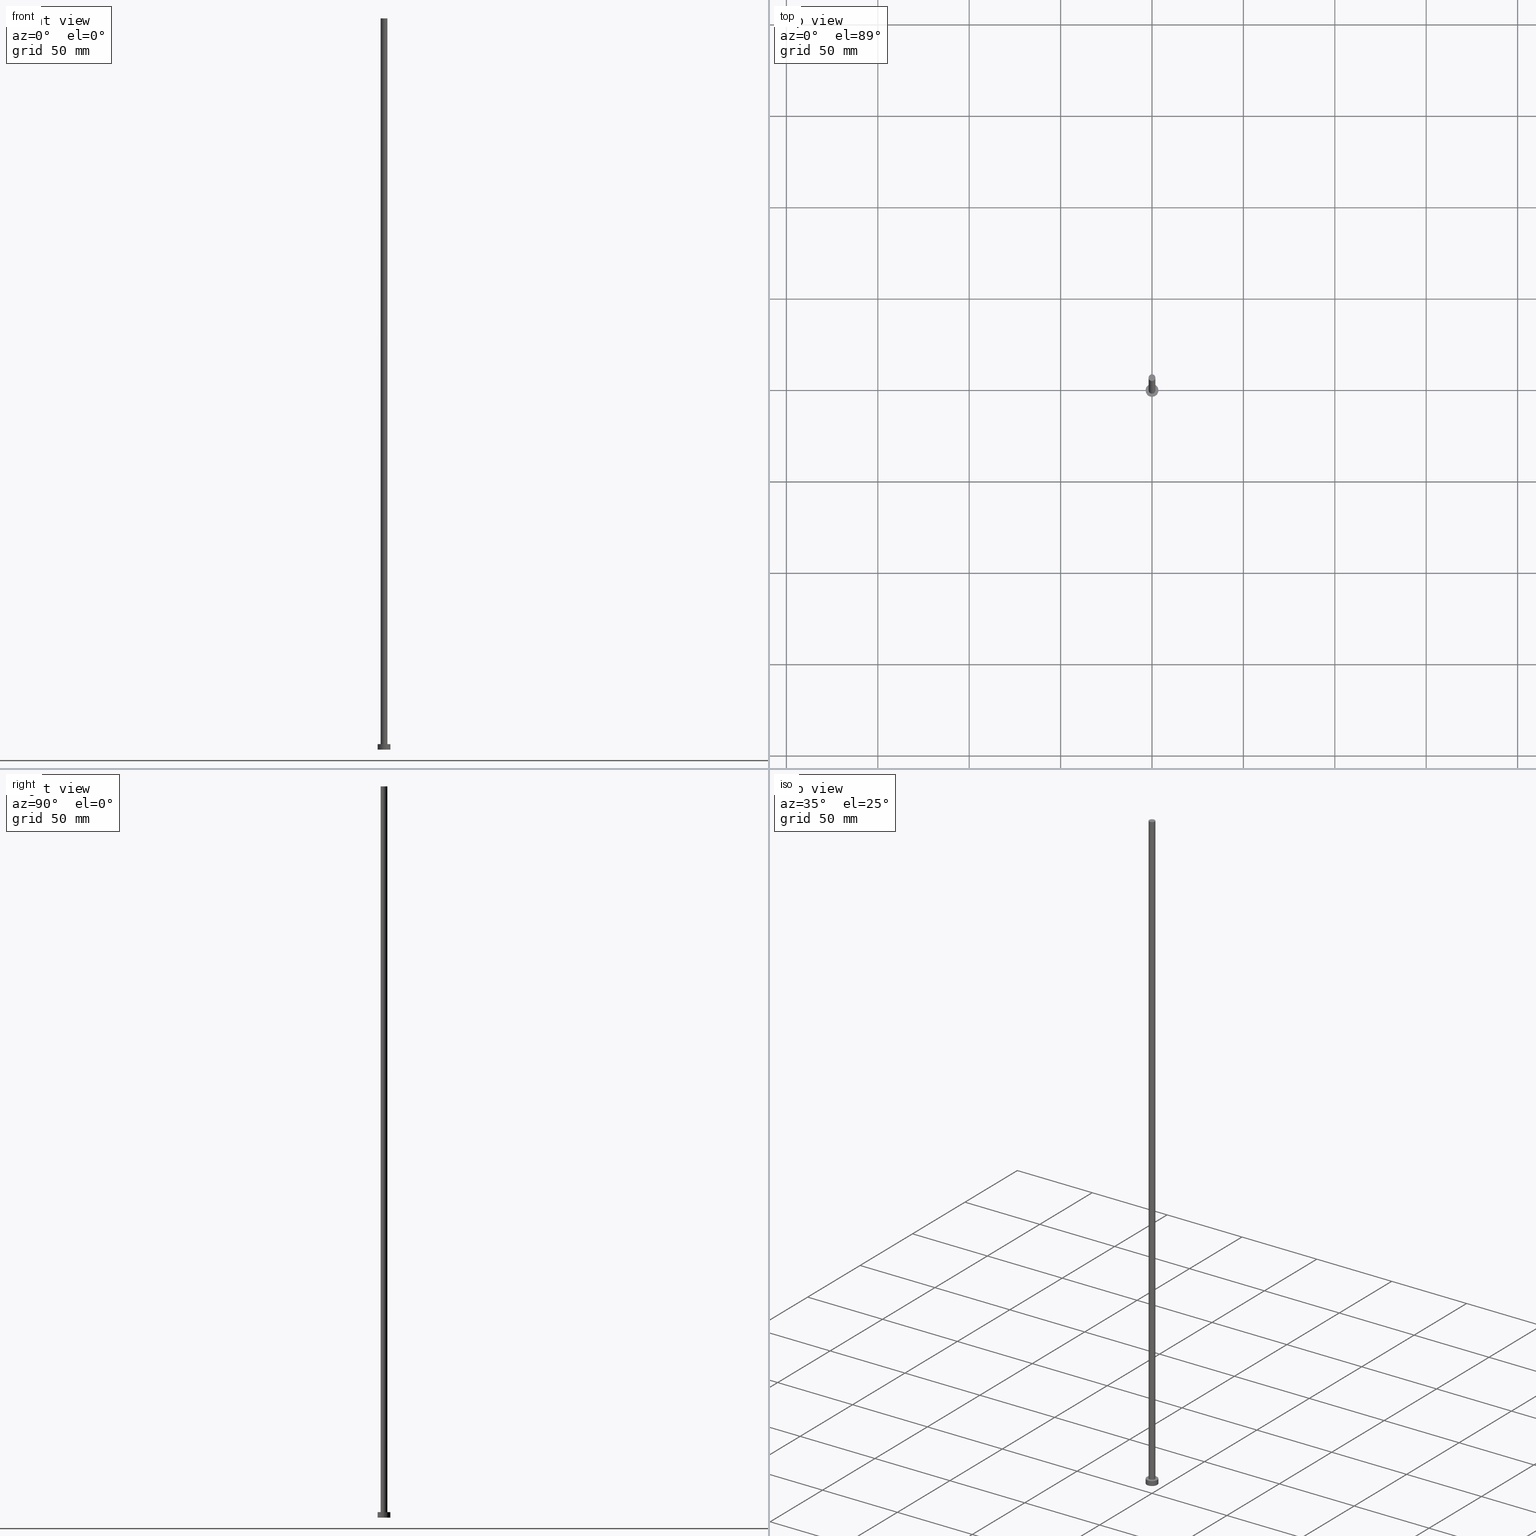
[diagram: canonical four-view strip — front | top / right | iso, engineering-drawing reading convention]
A machine part, canonical four-view strip (front | top / right | iso — engineering-drawing reading convention). The complete STEP part file that produces these views, byte-faithful:
ISO-10303-21;
HEADER;
FILE_DESCRIPTION (( 'STEP AP203' ),
    '1' );
FILE_NAME ('3c80.STEP',
    '2026-02-11T15:50:31',
    ( '' ),
    ( '' ),
    'SwSTEP 2.0',
    'SolidWorks 2019',
    '' );
FILE_SCHEMA (( 'CONFIG_CONTROL_DESIGN' ));
ENDSEC;

DATA;
#1 = ORIENTED_EDGE ( 'NONE', *, *, #176, .F. ) ;
#2 = APPROVAL ( #229, 'NEUR�EN�' ) ;
#3 = EDGE_CURVE ( 'NONE', #21, #142, #39, .T. ) ;
#4 = AXIS2_PLACEMENT_3D ( 'NONE', #46, #187, #225 ) ;
#5 = ORIENTED_EDGE ( 'NONE', *, *, #135, .T. ) ;
#6 = ORIENTED_EDGE ( 'NONE', *, *, #133, .T. ) ;
#7 = DIRECTION ( 'NONE',  ( 1.000000000000000000, 0.000000000000000000, 0.000000000000000000 ) ) ;
#8 = CYLINDRICAL_SURFACE ( 'NONE', #184, 3.500000000000000444 ) ;
#9 = DIRECTION ( 'NONE',  ( 1.000000000000000000, 0.000000000000000000, 0.000000000000000000 ) ) ;
#10 = EDGE_LOOP ( 'NONE', ( #141, #61, #125, #202 ) ) ;
#11 = DIRECTION ( 'NONE',  ( -1.000000000000000000, 0.000000000000000000, 0.000000000000000000 ) ) ;
#12 = DIRECTION ( 'NONE',  ( 1.000000000000000000, 0.000000000000000000, 0.000000000000000000 ) ) ;
#13 = CARTESIAN_POINT ( 'NONE',  ( 1.850000000000000089, 2.265596578422603100E-16, 400.0000000000000000 ) ) ;
#14 = APPROVAL_DATE_TIME ( #171, #78 ) ;
#15 = EDGE_CURVE ( 'NONE', #142, #21, #222, .T. ) ;
#16 = PERSON_AND_ORGANIZATION_ROLE ( 'classification_officer' ) ;
#17 = CIRCLE ( 'NONE', #242, 1.850000000000000089 ) ;
#18 = EDGE_LOOP ( 'NONE', ( #100, #102 ) ) ;
#19 = ADVANCED_FACE ( 'NONE', ( #58, #238 ), #101, .T. ) ;
#20 = CARTESIAN_POINT ( 'NONE',  ( 0.000000000000000000, 0.000000000000000000, 400.0000000000000000 ) ) ;
#21 = VERTEX_POINT ( 'NONE', #137 ) ;
#22 = ORIENTED_EDGE ( 'NONE', *, *, #15, .F. ) ;
#23 = CARTESIAN_POINT ( 'NONE',  ( -1.850000000000000089, 0.000000000000000000, 400.0000000000000000 ) ) ;
#24 = FACE_OUTER_BOUND ( 'NONE', #10, .T. ) ;
#25 = APPROVAL_PERSON_ORGANIZATION ( #201, #157, #34 ) ;
#26 = PRODUCT ( '3c80', '3c80', '', ( #86 ) ) ;
#27 = DIRECTION ( 'NONE',  ( 1.000000000000000000, 0.000000000000000000, -0.000000000000000000 ) ) ;
#28 = DIRECTION ( 'NONE',  ( 0.000000000000000000, 0.000000000000000000, 1.000000000000000000 ) ) ;
#29 = FACE_OUTER_BOUND ( 'NONE', #18, .T. ) ;
#30 = AXIS2_PLACEMENT_3D ( 'NONE', #191, #146, #12 ) ;
#31 = CALENDAR_DATE ( 2026, 11, 2 ) ;
#32 = SECURITY_CLASSIFICATION_LEVEL ( 'unclassified' ) ;
#33 = CC_DESIGN_APPROVAL ( #2, ( #75 ) ) ;
#34 = APPROVAL_ROLE ( '' ) ;
#35 = MANIFOLD_SOLID_BREP ( 'P�idat vysunut�m3', #253 ) ;
#36 = AXIS2_PLACEMENT_3D ( 'NONE', #248, #149, #231 ) ;
#37 = PRODUCT_DEFINITION ( 'NEZN�M�', '', #82, #79 ) ;
#38 = CARTESIAN_POINT ( 'NONE',  ( 0.000000000000000000, 0.000000000000000000, 3.000000000000000000 ) ) ;
#39 = CIRCLE ( 'NONE', #217, 1.850000000000000089 ) ;
#40 = APPROVAL_PERSON_ORGANIZATION ( #252, #78, #74 ) ;
#41 = VERTEX_POINT ( 'NONE', #215 ) ;
#42 = ORIENTED_EDGE ( 'NONE', *, *, #185, .F. ) ;
#43 = PERSON_AND_ORGANIZATION ( #97, #109 ) ;
#44 = CARTESIAN_POINT ( 'NONE',  ( 3.500000000000000444, 4.286263797015737088E-16, 3.000000000000000000 ) ) ;
#45 = APPROVAL_PERSON_ORGANIZATION ( #117, #2, #68 ) ;
#46 = CARTESIAN_POINT ( 'NONE',  ( 0.000000000000000000, 0.000000000000000000, 400.0000000000000000 ) ) ;
#47 = EDGE_CURVE ( 'NONE', #41, #240, #107, .T. ) ;
#48 = PLANE ( 'NONE',  #120 ) ;
#49 = DIRECTION ( 'NONE',  ( 1.000000000000000000, 0.000000000000000000, 0.000000000000000000 ) ) ;
#50 = CC_DESIGN_APPROVAL ( #157, ( #37 ) ) ;
#51 = DATE_AND_TIME ( #147, #195 ) ;
#52 = CARTESIAN_POINT ( 'NONE',  ( 1.850000000000000089, 2.265596578422603100E-16, 3.000000000000000000 ) ) ;
#53 = CIRCLE ( 'NONE', #169, 3.500000000000000444 ) ;
#54 = PERSON_AND_ORGANIZATION ( #97, #109 ) ;
#55 = APPROVAL_STATUS ( 'not_yet_approved' ) ;
#56 =( GEOMETRIC_REPRESENTATION_CONTEXT ( 3 ) GLOBAL_UNCERTAINTY_ASSIGNED_CONTEXT ( ( #155 ) ) GLOBAL_UNIT_ASSIGNED_CONTEXT ( ( #241, #103, #84 ) ) REPRESENTATION_CONTEXT ( 'NONE', 'WORKASPACE' ) );
#57 = CARTESIAN_POINT ( 'NONE',  ( 0.000000000000000000, 0.000000000000000000, 3.000000000000000000 ) ) ;
#58 = FACE_BOUND ( 'NONE', #122, .T. ) ;
#59 = CC_DESIGN_PERSON_AND_ORGANIZATION_ASSIGNMENT ( #232, #235, ( #82 ) ) ;
#60 = EDGE_LOOP ( 'NONE', ( #1, #219, #199, #220 ) ) ;
#61 = ORIENTED_EDGE ( 'NONE', *, *, #3, .F. ) ;
#62 = AXIS2_PLACEMENT_3D ( 'NONE', #57, #237, #198 ) ;
#63 = LINE ( 'NONE', #129, #245 ) ;
#64 = CC_DESIGN_PERSON_AND_ORGANIZATION_ASSIGNMENT ( #115, #172, ( #37 ) ) ;
#65 = CYLINDRICAL_SURFACE ( 'NONE', #4, 1.850000000000000089 ) ;
#66 = ADVANCED_FACE ( 'NONE', ( #110 ), #148, .T. ) ;
#67 = LINE ( 'NONE', #93, #143 ) ;
#68 = APPROVAL_ROLE ( '' ) ;
#69 = DIRECTION ( 'NONE',  ( 0.000000000000000000, 0.000000000000000000, 1.000000000000000000 ) ) ;
#70 = CARTESIAN_POINT ( 'NONE',  ( 0.000000000000000000, 0.000000000000000000, 0.000000000000000000 ) ) ;
#71 = SHAPE_DEFINITION_REPRESENTATION ( #188, #154 ) ;
#72 = CALENDAR_DATE ( 2026, 11, 2 ) ;
#73 = CC_DESIGN_PERSON_AND_ORGANIZATION_ASSIGNMENT ( #54, #134, ( #82 ) ) ;
#74 = APPROVAL_ROLE ( '' ) ;
#75 = SECURITY_CLASSIFICATION ( '', '', #32 ) ;
#76 = DIRECTION ( 'NONE',  ( 0.000000000000000000, 0.000000000000000000, 1.000000000000000000 ) ) ;
#77 = DIRECTION ( 'NONE',  ( 1.000000000000000000, 0.000000000000000000, 0.000000000000000000 ) ) ;
#78 = APPROVAL ( #211, 'NEUR�EN�' ) ;
#79 = DESIGN_CONTEXT ( 'detailed design', #150, 'design' ) ;
#80 = AXIS2_PLACEMENT_3D ( 'NONE', #38, #69, #207 ) ;
#81 = ORIENTED_EDGE ( 'NONE', *, *, #47, .T. ) ;
#82 = PRODUCT_DEFINITION_FORMATION_WITH_SPECIFIED_SOURCE ( 'LIBOVOLN�', '', #26, .NOT_KNOWN. ) ;
#83 = EDGE_LOOP ( 'NONE', ( #22, #162, #216, #42 ) ) ;
#84 =( NAMED_UNIT ( * ) SI_UNIT ( $, .STERADIAN. ) SOLID_ANGLE_UNIT ( ) );
#85 = VERTEX_POINT ( 'NONE', #92 ) ;
#86 = MECHANICAL_CONTEXT ( 'NONE', #163, 'mechanical' ) ;
#87 = CARTESIAN_POINT ( 'NONE',  ( 0.000000000000000000, 0.000000000000000000, 3.000000000000000000 ) ) ;
#88 = CC_DESIGN_PERSON_AND_ORGANIZATION_ASSIGNMENT ( #43, #203, ( #26 ) ) ;
#89 = AXIS2_PLACEMENT_3D ( 'NONE', #190, #230, #11 ) ;
#90 = ADVANCED_FACE ( 'NONE', ( #246 ), #48, .T. ) ;
#91 = DIRECTION ( 'NONE',  ( -1.000000000000000000, 0.000000000000000000, 0.000000000000000000 ) ) ;
#92 = CARTESIAN_POINT ( 'NONE',  ( 3.500000000000000444, 4.286263797015737088E-16, 0.000000000000000000 ) ) ;
#93 = CARTESIAN_POINT ( 'NONE',  ( 1.850000000000000089, 2.265596578422603100E-16, 400.0000000000000000 ) ) ;
#94 = FACE_OUTER_BOUND ( 'NONE', #83, .T. ) ;
#95 = APPROVAL_DATE_TIME ( #151, #157 ) ;
#96 = COORDINATED_UNIVERSAL_TIME_OFFSET ( 1, 0, .AHEAD. ) ;
#97 = PERSON ( 'NEUR�EN�', 'NEUR�EN�', 'NEUR�EN�', ('NEUR�EN�'), ('NEUR�EN�'), ('NEUR�EN�') ) ;
#98 = ORIENTED_EDGE ( 'NONE', *, *, #133, .F. ) ;
#99 = AXIS2_PLACEMENT_3D ( 'NONE', #208, #28, #111 ) ;
#100 = ORIENTED_EDGE ( 'NONE', *, *, #251, .F. ) ;
#101 = PLANE ( 'NONE',  #62 ) ;
#102 = ORIENTED_EDGE ( 'NONE', *, *, #135, .F. ) ;
#103 =( NAMED_UNIT ( * ) PLANE_ANGLE_UNIT ( ) SI_UNIT ( $, .RADIAN. ) );
#104 = ORIENTED_EDGE ( 'NONE', *, *, #116, .F. ) ;
#105 = EDGE_CURVE ( 'NONE', #142, #139, #67, .T. ) ;
#106 = DIRECTION ( 'NONE',  ( 0.000000000000000000, 0.000000000000000000, 1.000000000000000000 ) ) ;
#107 = CIRCLE ( 'NONE', #80, 3.500000000000000444 ) ;
#108 = LINE ( 'NONE', #23, #152 ) ;
#109 = ORGANIZATION ( 'NEUR�EN�', 'NEUR�EN�', '' ) ;
#110 = FACE_OUTER_BOUND ( 'NONE', #174, .T. ) ;
#111 = DIRECTION ( 'NONE',  ( 1.000000000000000000, 0.000000000000000000, 0.000000000000000000 ) ) ;
#112 = DIRECTION ( 'NONE',  ( 1.000000000000000000, 0.000000000000000000, -0.000000000000000000 ) ) ;
#113 = DATE_AND_TIME ( #173, #218 ) ;
#114 = COORDINATED_UNIVERSAL_TIME_OFFSET ( 1, 0, .AHEAD. ) ;
#115 = PERSON_AND_ORGANIZATION ( #97, #109 ) ;
#116 = EDGE_CURVE ( 'NONE', #139, #123, #179, .T. ) ;
#117 = PERSON_AND_ORGANIZATION ( #97, #109 ) ;
#118 = VECTOR ( 'NONE', #183, 1000.000000000000000 ) ;
#119 = DIRECTION ( 'NONE',  ( 1.000000000000000000, 0.000000000000000000, 0.000000000000000000 ) ) ;
#120 = AXIS2_PLACEMENT_3D ( 'NONE', #167, #130, #27 ) ;
#121 = AXIS2_PLACEMENT_3D ( 'NONE', #221, #126, #7 ) ;
#122 = EDGE_LOOP ( 'NONE', ( #178, #104 ) ) ;
#123 = VERTEX_POINT ( 'NONE', #247 ) ;
#124 = APPLICATION_PROTOCOL_DEFINITION ( 'international standard', 'config_control_design', 1994, #163 ) ;
#125 = ORIENTED_EDGE ( 'NONE', *, *, #185, .T. ) ;
#126 = DIRECTION ( 'NONE',  ( 0.000000000000000000, 0.000000000000000000, 1.000000000000000000 ) ) ;
#127 = CARTESIAN_POINT ( 'NONE',  ( 0.000000000000000000, 0.000000000000000000, 0.000000000000000000 ) ) ;
#128 = CC_DESIGN_DATE_AND_TIME_ASSIGNMENT ( #213, #194, ( #37 ) ) ;
#129 = CARTESIAN_POINT ( 'NONE',  ( -3.500000000000000444, 0.000000000000000000, 3.000000000000000000 ) ) ;
#130 = DIRECTION ( 'NONE',  ( 0.000000000000000000, 0.000000000000000000, 1.000000000000000000 ) ) ;
#131 = DIRECTION ( 'NONE',  ( -0.000000000000000000, -0.000000000000000000, -1.000000000000000000 ) ) ;
#132 = PLANE ( 'NONE',  #210 ) ;
#133 = EDGE_CURVE ( 'NONE', #240, #41, #214, .T. ) ;
#134 = PERSON_AND_ORGANIZATION_ROLE ( 'design_supplier' ) ;
#135 = EDGE_CURVE ( 'NONE', #85, #200, #175, .T. ) ;
#136 = COORDINATED_UNIVERSAL_TIME_OFFSET ( 1, 0, .AHEAD. ) ;
#137 = CARTESIAN_POINT ( 'NONE',  ( -1.850000000000000089, 0.000000000000000000, 400.0000000000000000 ) ) ;
#138 = PRODUCT_RELATED_PRODUCT_CATEGORY ( 'detail', '', ( #26 ) ) ;
#139 = VERTEX_POINT ( 'NONE', #52 ) ;
#140 = ADVANCED_FACE ( 'NONE', ( #29 ), #132, .F. ) ;
#141 = ORIENTED_EDGE ( 'NONE', *, *, #105, .F. ) ;
#142 = VERTEX_POINT ( 'NONE', #13 ) ;
#143 = VECTOR ( 'NONE', #131, 1000.000000000000000 ) ;
#144 = CARTESIAN_POINT ( 'NONE',  ( 0.000000000000000000, 0.000000000000000000, 3.000000000000000000 ) ) ;
#145 = DIRECTION ( 'NONE',  ( -0.000000000000000000, -0.000000000000000000, -1.000000000000000000 ) ) ;
#146 = DIRECTION ( 'NONE',  ( 0.000000000000000000, 0.000000000000000000, 1.000000000000000000 ) ) ;
#147 = CALENDAR_DATE ( 2026, 11, 2 ) ;
#148 = CYLINDRICAL_SURFACE ( 'NONE', #89, 3.500000000000000444 ) ;
#149 = DIRECTION ( 'NONE',  ( -0.000000000000000000, -0.000000000000000000, -1.000000000000000000 ) ) ;
#150 = APPLICATION_CONTEXT ( 'configuration controlled 3d designs of mechanical parts and assemblies' ) ;
#151 = DATE_AND_TIME ( #72, #160 ) ;
#152 = VECTOR ( 'NONE', #145, 1000.000000000000000 ) ;
#153 = CALENDAR_DATE ( 2026, 11, 2 ) ;
#154 = ADVANCED_BREP_SHAPE_REPRESENTATION ( '3c80', ( #35, #121 ), #56 ) ;
#155 = UNCERTAINTY_MEASURE_WITH_UNIT (LENGTH_MEASURE( 1.000000000000000082E-05 ), #241, 'distance_accuracy_value', 'NONE');
#156 = CARTESIAN_POINT ( 'NONE',  ( 0.000000000000000000, 0.000000000000000000, 400.0000000000000000 ) ) ;
#157 = APPROVAL ( #55, 'NEUR�EN�' ) ;
#158 = DIRECTION ( 'NONE',  ( 0.000000000000000000, 0.000000000000000000, 1.000000000000000000 ) ) ;
#159 = ADVANCED_FACE ( 'NONE', ( #94 ), #170, .T. ) ;
#160 = LOCAL_TIME ( 16, 50, 31.00000000000000000, #250 ) ;
#161 = ORIENTED_EDGE ( 'NONE', *, *, #15, .T. ) ;
#162 = ORIENTED_EDGE ( 'NONE', *, *, #105, .T. ) ;
#163 = APPLICATION_CONTEXT ( 'configuration controlled 3d designs of mechanical parts and assemblies' ) ;
#164 = APPLICATION_PROTOCOL_DEFINITION ( 'international standard', 'config_control_design', 1994, #150 ) ;
#165 = CARTESIAN_POINT ( 'NONE',  ( -3.500000000000000444, 0.000000000000000000, 0.000000000000000000 ) ) ;
#166 = DIRECTION ( 'NONE',  ( 1.000000000000000000, 0.000000000000000000, 0.000000000000000000 ) ) ;
#167 = CARTESIAN_POINT ( 'NONE',  ( 0.000000000000000000, 0.000000000000000000, 400.0000000000000000 ) ) ;
#168 = CARTESIAN_POINT ( 'NONE',  ( 0.000000000000000000, 0.000000000000000000, 3.000000000000000000 ) ) ;
#169 = AXIS2_PLACEMENT_3D ( 'NONE', #127, #106, #9 ) ;
#170 = CYLINDRICAL_SURFACE ( 'NONE', #36, 1.850000000000000089 ) ;
#171 = DATE_AND_TIME ( #31, #186 ) ;
#172 = PERSON_AND_ORGANIZATION_ROLE ( 'creator' ) ;
#173 = CALENDAR_DATE ( 2026, 11, 2 ) ;
#174 = EDGE_LOOP ( 'NONE', ( #98, #254, #5, #181 ) ) ;
#175 = CIRCLE ( 'NONE', #99, 3.500000000000000444 ) ;
#176 = EDGE_CURVE ( 'NONE', #240, #85, #209, .T. ) ;
#177 = ADVANCED_FACE ( 'NONE', ( #24 ), #65, .T. ) ;
#178 = ORIENTED_EDGE ( 'NONE', *, *, #236, .F. ) ;
#179 = CIRCLE ( 'NONE', #30, 1.850000000000000089 ) ;
#180 = EDGE_LOOP ( 'NONE', ( #189, #161 ) ) ;
#181 = ORIENTED_EDGE ( 'NONE', *, *, #223, .F. ) ;
#182 = FACE_OUTER_BOUND ( 'NONE', #60, .T. ) ;
#183 = DIRECTION ( 'NONE',  ( -0.000000000000000000, -0.000000000000000000, -1.000000000000000000 ) ) ;
#184 = AXIS2_PLACEMENT_3D ( 'NONE', #87, #243, #91 ) ;
#185 = EDGE_CURVE ( 'NONE', #21, #123, #108, .T. ) ;
#186 = LOCAL_TIME ( 16, 50, 31.00000000000000000, #136 ) ;
#187 = DIRECTION ( 'NONE',  ( -0.000000000000000000, -0.000000000000000000, -1.000000000000000000 ) ) ;
#188 = PRODUCT_DEFINITION_SHAPE ( 'NONE', 'NONE',  #37 ) ;
#189 = ORIENTED_EDGE ( 'NONE', *, *, #3, .T. ) ;
#190 = CARTESIAN_POINT ( 'NONE',  ( 0.000000000000000000, 0.000000000000000000, 3.000000000000000000 ) ) ;
#191 = CARTESIAN_POINT ( 'NONE',  ( 0.000000000000000000, 0.000000000000000000, 3.000000000000000000 ) ) ;
#192 = DIRECTION ( 'NONE',  ( 0.000000000000000000, 0.000000000000000000, 1.000000000000000000 ) ) ;
#193 = AXIS2_PLACEMENT_3D ( 'NONE', #156, #158, #119 ) ;
#194 = DATE_TIME_ROLE ( 'creation_date' ) ;
#195 = LOCAL_TIME ( 16, 50, 31.00000000000000000, #234 ) ;
#196 = APPROVAL_DATE_TIME ( #51, #2 ) ;
#197 = PERSON_AND_ORGANIZATION ( #97, #109 ) ;
#198 = DIRECTION ( 'NONE',  ( 1.000000000000000000, 0.000000000000000000, -0.000000000000000000 ) ) ;
#199 = ORIENTED_EDGE ( 'NONE', *, *, #223, .T. ) ;
#200 = VERTEX_POINT ( 'NONE', #165 ) ;
#201 = PERSON_AND_ORGANIZATION ( #97, #109 ) ;
#202 = ORIENTED_EDGE ( 'NONE', *, *, #236, .T. ) ;
#203 = PERSON_AND_ORGANIZATION_ROLE ( 'design_owner' ) ;
#204 = ADVANCED_FACE ( 'NONE', ( #182 ), #8, .T. ) ;
#205 = CARTESIAN_POINT ( 'NONE',  ( 3.500000000000000444, 4.286263797015737088E-16, 3.000000000000000000 ) ) ;
#206 = CC_DESIGN_APPROVAL ( #78, ( #82 ) ) ;
#207 = DIRECTION ( 'NONE',  ( 1.000000000000000000, 0.000000000000000000, 0.000000000000000000 ) ) ;
#208 = CARTESIAN_POINT ( 'NONE',  ( 0.000000000000000000, 0.000000000000000000, 0.000000000000000000 ) ) ;
#209 = LINE ( 'NONE', #205, #118 ) ;
#210 = AXIS2_PLACEMENT_3D ( 'NONE', #70, #192, #112 ) ;
#211 = APPROVAL_STATUS ( 'not_yet_approved' ) ;
#212 = CC_DESIGN_SECURITY_CLASSIFICATION ( #75, ( #82 ) ) ;
#213 = DATE_AND_TIME ( #153, #228 ) ;
#214 = CIRCLE ( 'NONE', #226, 3.500000000000000444 ) ;
#215 = CARTESIAN_POINT ( 'NONE',  ( -3.500000000000000444, 0.000000000000000000, 3.000000000000000000 ) ) ;
#216 = ORIENTED_EDGE ( 'NONE', *, *, #116, .T. ) ;
#217 = AXIS2_PLACEMENT_3D ( 'NONE', #20, #76, #77 ) ;
#218 = LOCAL_TIME ( 16, 50, 31.00000000000000000, #96 ) ;
#219 = ORIENTED_EDGE ( 'NONE', *, *, #47, .F. ) ;
#220 = ORIENTED_EDGE ( 'NONE', *, *, #251, .T. ) ;
#221 = CARTESIAN_POINT ( 'NONE',  ( 0.000000000000000000, 0.000000000000000000, 0.000000000000000000 ) ) ;
#222 = CIRCLE ( 'NONE', #193, 1.850000000000000089 ) ;
#223 = EDGE_CURVE ( 'NONE', #41, #200, #63, .T. ) ;
#224 = DIRECTION ( 'NONE',  ( 0.000000000000000000, 0.000000000000000000, 1.000000000000000000 ) ) ;
#225 = DIRECTION ( 'NONE',  ( -1.000000000000000000, 0.000000000000000000, 0.000000000000000000 ) ) ;
#226 = AXIS2_PLACEMENT_3D ( 'NONE', #168, #227, #49 ) ;
#227 = DIRECTION ( 'NONE',  ( 0.000000000000000000, 0.000000000000000000, 1.000000000000000000 ) ) ;
#228 = LOCAL_TIME ( 16, 50, 31.00000000000000000, #114 ) ;
#229 = APPROVAL_STATUS ( 'not_yet_approved' ) ;
#230 = DIRECTION ( 'NONE',  ( -0.000000000000000000, -0.000000000000000000, -1.000000000000000000 ) ) ;
#231 = DIRECTION ( 'NONE',  ( -1.000000000000000000, 0.000000000000000000, 0.000000000000000000 ) ) ;
#232 = PERSON_AND_ORGANIZATION ( #97, #109 ) ;
#233 = CC_DESIGN_DATE_AND_TIME_ASSIGNMENT ( #113, #249, ( #75 ) ) ;
#234 = COORDINATED_UNIVERSAL_TIME_OFFSET ( 1, 0, .AHEAD. ) ;
#235 = PERSON_AND_ORGANIZATION_ROLE ( 'creator' ) ;
#236 = EDGE_CURVE ( 'NONE', #123, #139, #17, .T. ) ;
#237 = DIRECTION ( 'NONE',  ( 0.000000000000000000, 0.000000000000000000, 1.000000000000000000 ) ) ;
#238 = FACE_OUTER_BOUND ( 'NONE', #239, .T. ) ;
#239 = EDGE_LOOP ( 'NONE', ( #81, #6 ) ) ;
#240 = VERTEX_POINT ( 'NONE', #44 ) ;
#241 =( LENGTH_UNIT ( ) NAMED_UNIT ( * ) SI_UNIT ( .MILLI., .METRE. ) );
#242 = AXIS2_PLACEMENT_3D ( 'NONE', #144, #224, #166 ) ;
#243 = DIRECTION ( 'NONE',  ( -0.000000000000000000, -0.000000000000000000, -1.000000000000000000 ) ) ;
#244 = DIRECTION ( 'NONE',  ( -0.000000000000000000, -0.000000000000000000, -1.000000000000000000 ) ) ;
#245 = VECTOR ( 'NONE', #244, 1000.000000000000000 ) ;
#246 = FACE_OUTER_BOUND ( 'NONE', #180, .T. ) ;
#247 = CARTESIAN_POINT ( 'NONE',  ( -1.850000000000000089, 0.000000000000000000, 3.000000000000000000 ) ) ;
#248 = CARTESIAN_POINT ( 'NONE',  ( 0.000000000000000000, 0.000000000000000000, 400.0000000000000000 ) ) ;
#249 = DATE_TIME_ROLE ( 'classification_date' ) ;
#250 = COORDINATED_UNIVERSAL_TIME_OFFSET ( 1, 0, .AHEAD. ) ;
#251 = EDGE_CURVE ( 'NONE', #200, #85, #53, .T. ) ;
#252 = PERSON_AND_ORGANIZATION ( #97, #109 ) ;
#253 = CLOSED_SHELL ( 'NONE', ( #159, #66, #204, #19, #140, #177, #90 ) ) ;
#254 = ORIENTED_EDGE ( 'NONE', *, *, #176, .T. ) ;
#255 = CC_DESIGN_PERSON_AND_ORGANIZATION_ASSIGNMENT ( #197, #16, ( #75 ) ) ;
ENDSEC;
END-ISO-10303-21;
